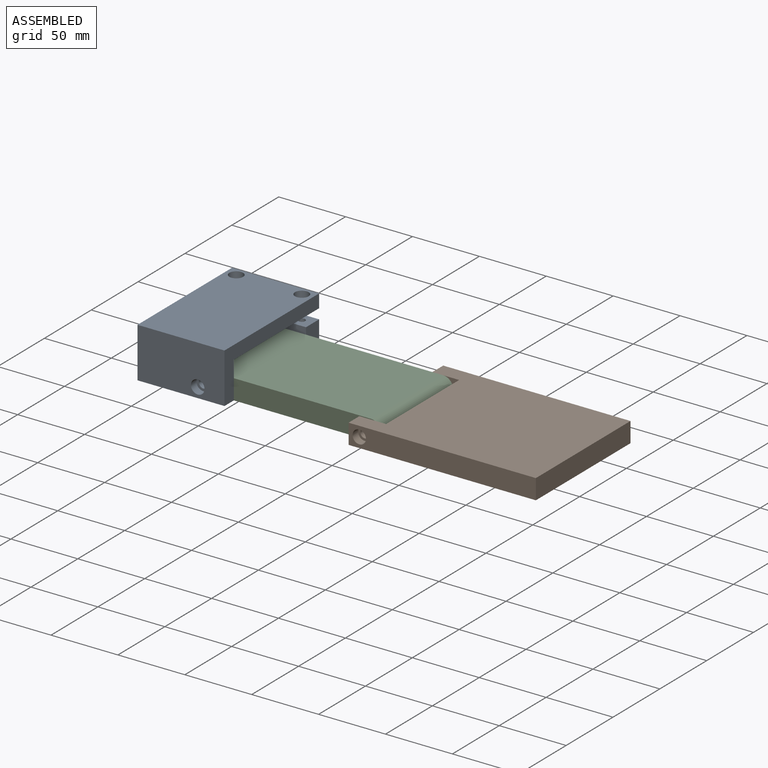
[diagram: assembled view]
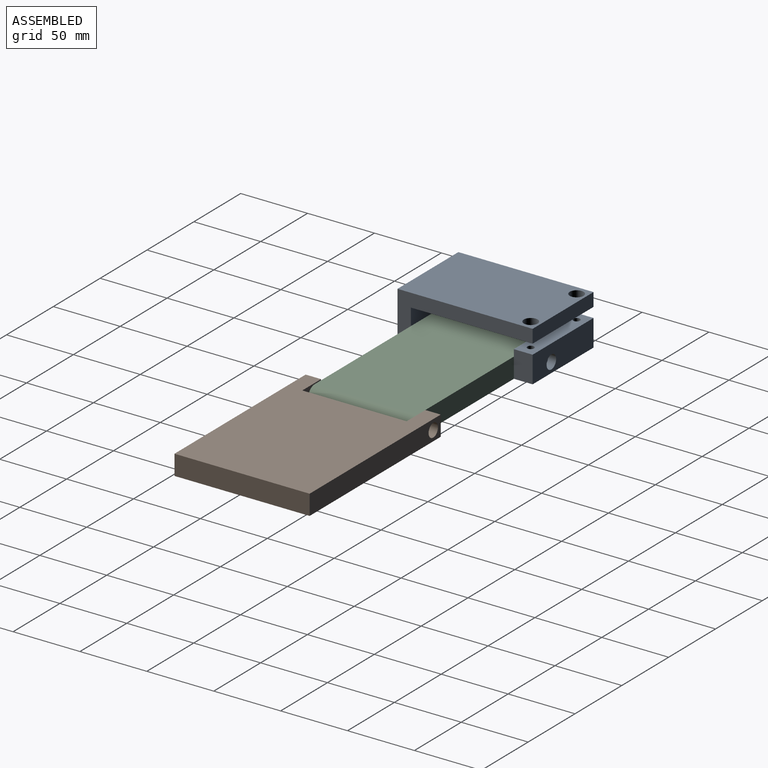
[diagram: assembled view, second angle]
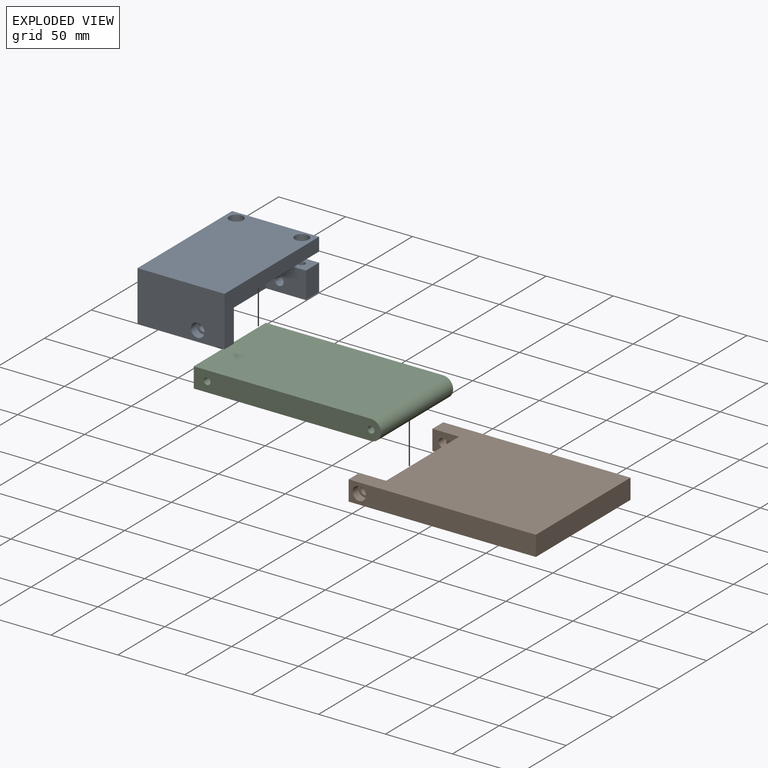
[diagram: exploded view]
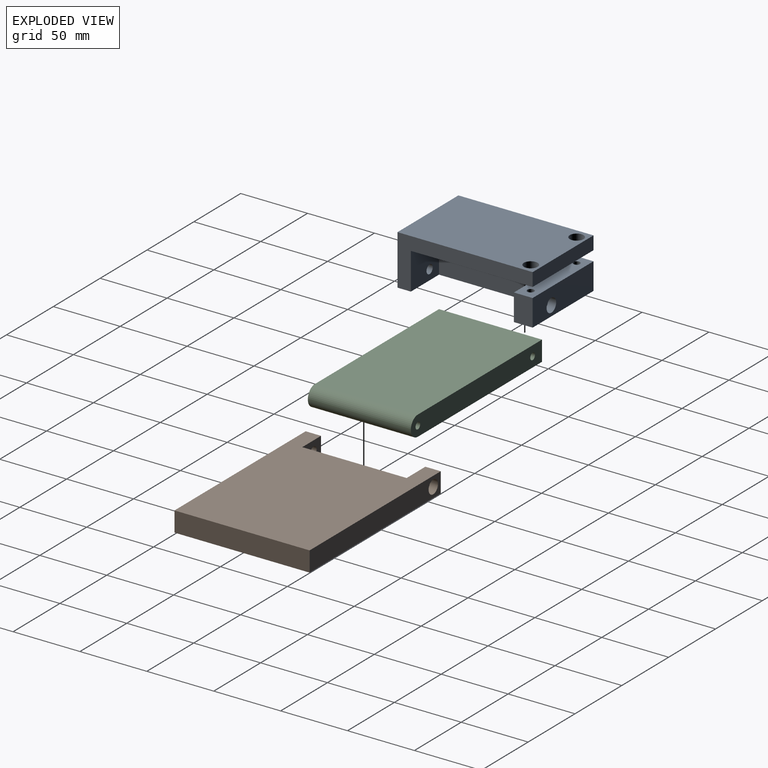
[diagram: exploded view, second angle]
ASSEMBLY  parts=3 mates=2
PART A: 28 faces, bbox 65x37.5x101 mm
  f0: plane 77x35mm, normal (0,-1,0), area 2695mm2, adj f1,f7,f8,f27
  f1: plane 101x37.5mm, normal (1,0,0), area 2720mm2, adj f0,f2,f4,f6,f7,f8,f9,f10
  f2: plane 101x65mm, normal (0,1,0), area 4215.7mm2, adj f1,f3,f4,f5,f6,f7,f8,f13
  f3: plane 101x37.5mm, normal (-1,0,0), area 1285mm2, adj f2,f4,f7,f10,f11,f12
  f4: plane 65x37.5mm, normal (0,0,1), area 2355.8mm2, adj f1,f2,f3,f12,f21
  f5: plane 20x14mm, normal (-1,0,0), area 280mm2, adj f2,f6,f8,f9
  f6: plane 65x20mm, normal (0,0,-1), area 1218.3mm2, adj f1,f2,f5,f9,f24
  f7: plane 65x27.5mm, normal (0,0,-1), area 1228.3mm2, adj f0,f1,f2,f3,f10,f23,f27
  f8: plane 65x20mm, normal (0,0,1), area 740.8mm2, adj f0,f1,f2,f5,f9,f26,f27
  f9: plane 65x14mm, normal (0,-1,0), area 870.7mm2, adj f1,f5,f6,f8,f13,f14
  f10: plane 91x65mm, normal (0,1,0), area 5846.6mm2, adj f1,f3,f7,f11,f19,f20
  f11: plane 65x10mm, normal (0,0,-1), area 650mm2, adj f1,f3,f10,f12
  f12: plane 101x65mm, normal (0,-1,0), area 6398.4mm2, adj f1,f3,f4,f11,f15,f17
  f13: cylinder r=2.5mm len=20mm, axis (0,-1,0), area 314.2mm2, adj f2,f9
  f14: cylinder r=2.5mm len=20mm, axis (0,-1,0), area 314.2mm2, adj f2,f9
  f15: cylinder r=5.15mm len=10.3mm, axis (0,-1,0), area 194.2mm2, adj f12,f16
  f16: plane 10.3x10.3mm, normal (0,-1,0), area 49.1mm2, adj f15,f19
  f17: cylinder r=5.15mm len=10.3mm, axis (0,-1,0), area 194.2mm2, adj f12,f18
  f18: plane 10.3x10.3mm, normal (0,-1,0), area 49.1mm2, adj f17,f20
  f19: cylinder r=3.3mm len=6.6mm, axis (0,-1,0), area 82.9mm2, adj f10,f16
  f20: cylinder r=3.3mm len=6.6mm, axis (0,-1,0), area 82.9mm2, adj f10,f18
  f21: cylinder r=5.1mm len=10.2mm, axis (0,0,1), area 192.3mm2, adj f4,f22
  f22: plane 10.2x10.2mm, normal (0,0,1), area 47.5mm2, adj f21,f23
  f23: cylinder r=3.3mm len=6.6mm, axis (0,0,1), area 82.9mm2, adj f7,f22
  f24: cylinder r=5.1mm len=10.2mm, axis (0,0,-1), area 192.3mm2, adj f6,f25
  f25: plane 10.2x10.2mm, normal (0,0,-1), area 47.5mm2, adj f24,f26
  f26: cylinder r=3.3mm len=8mm, axis (0,0,-1), area 165.9mm2, adj f8,f25
  f27: plane 77x15mm, normal (-1,0,0), area 1155mm2, adj f0,f2,f7,f8
PART B: 16 faces, bbox 140x101x15 mm
  f0: plane 15x11.5mm, normal (-1,0,0), area 172.5mm2, adj f4,f5,f6,f9
  f1: plane 15x11.5mm, normal (-1,0,0), area 172.5mm2, adj f2,f5,f6,f7
  f2: plane 140x15mm, normal (0,-1,0), area 2021.5mm2, adj f1,f3,f5,f6,f12
  f3: plane 101x15mm, normal (1,0,0), area 1515mm2, adj f2,f4,f5,f6
  f4: plane 140x15mm, normal (0,1,0), area 2021.5mm2, adj f0,f3,f5,f6,f10
  f5: plane 140x101mm, normal (0,0,1), area 12580mm2, adj f0,f1,f2,f3,f4,f7,f8,f9
  f6: plane 140x101mm, normal (0,0,-1), area 12580mm2, adj f0,f1,f2,f3,f4,f7,f8,f9
  f7: plane 20x15mm, normal (0,1,0), area 265.8mm2, adj f1,f5,f6,f8,f14
  f8: plane 78x15mm, normal (-1,0,0), area 1170mm2, adj f5,f6,f7,f9
  f9: plane 20x15mm, normal (0,-1,0), area 265.8mm2, adj f0,f5,f6,f8,f15
  f10: cylinder r=5mm len=10mm, axis (0,1,0), area 188.5mm2, adj f4,f11
  f11: plane 10x10mm, normal (0,1,0), area 44.3mm2, adj f10,f15
  f12: cylinder r=5mm len=10mm, axis (0,-1,0), area 188.5mm2, adj f2,f13
  f13: plane 10x10mm, normal (0,-1,0), area 44.3mm2, adj f12,f14
  f14: cylinder r=3.3mm len=6.6mm, axis (0,1,0), area 114mm2, adj f7,f13
  f15: cylinder r=3.3mm len=6.6mm, axis (0,1,0), area 114mm2, adj f9,f11
PART C: 14 faces, bbox 140x77x15 mm
  f0: plane 140x15mm, normal (0,1,0), area 2036.6mm2, adj f1,f3,f4,f8,f9,f13
  f1: plane 77x15mm, normal (-1,0,0), area 1155mm2, adj f0,f2,f3,f4
  f2: plane 140x15mm, normal (0,-1,0), area 2036.6mm2, adj f1,f3,f4,f6,f9,f11
  f3: plane 132.5x77mm, normal (0,0,1), area 10202.5mm2, adj f0,f1,f2,f9
  f4: plane 132.5x77mm, normal (0,0,-1), area 10202.5mm2, adj f0,f1,f2,f9
  f5: cone r=0mm half-angle=59deg, axis (0,-1,0), area 22.9mm2, adj f6
  f6: cylinder r=2.5mm len=30mm, axis (0,-1,0), area 471.2mm2, adj f2,f5
  f7: cone r=0mm half-angle=59deg, axis (0,1,0), area 22.9mm2, adj f8
  f8: cylinder r=2.5mm len=30mm, axis (0,1,0), area 471.2mm2, adj f0,f7
  f9: cylinder r=7.5mm len=77mm, axis (0,-1,0), area 1814.3mm2, adj f0,f2,f3,f4
  f10: cone r=0mm half-angle=59deg, axis (0,-1,0), area 22.9mm2, adj f11
  f11: cylinder r=2.5mm len=30mm, axis (0,-1,0), area 471.2mm2, adj f2,f10
  f12: cone r=0mm half-angle=59deg, axis (0,1,0), area 22.9mm2, adj f13
  f13: cylinder r=2.5mm len=30mm, axis (0,1,0), area 471.2mm2, adj f0,f12
PLACE A rot(axis=(0,-0.71,0.71),180deg) t=(-265.34,244.06,-34.22)mm
PLACE B rot(axis=(0.98,0.19,-0.1),0deg) t=(-105.84,154.56,-49.22)mm
PLACE C t=(-90.34,244.06,-49.22)mm
MATE fastened A.f21 <-> C.f5  axis (0,-1,0) through (-220.34,244.06,-41.72)mm
MATE fastened C.f9 <-> B.f10  axis (0,1,0) through (-97.84,244.06,-41.72)mm
